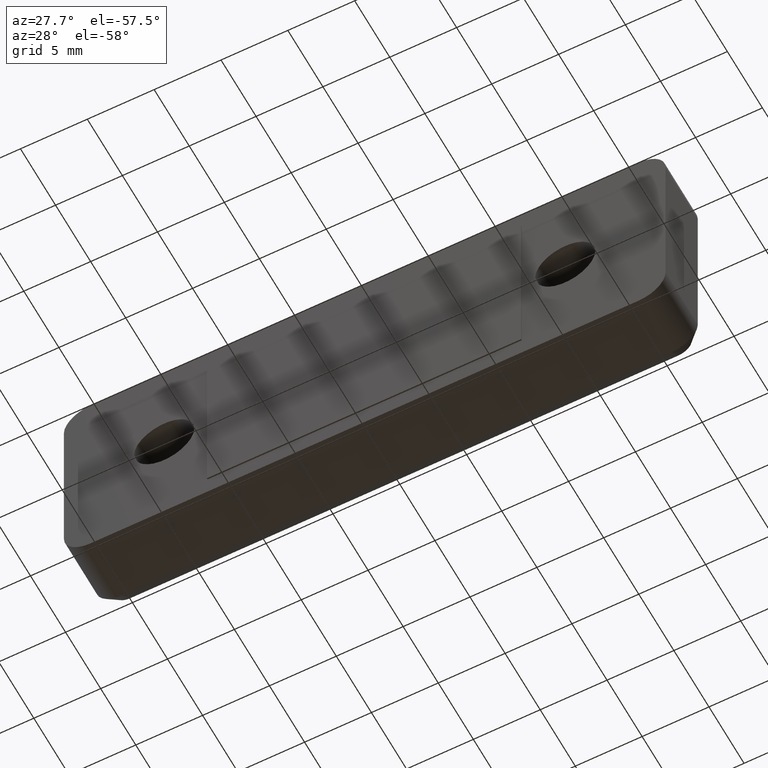
[diagram: clean part render]
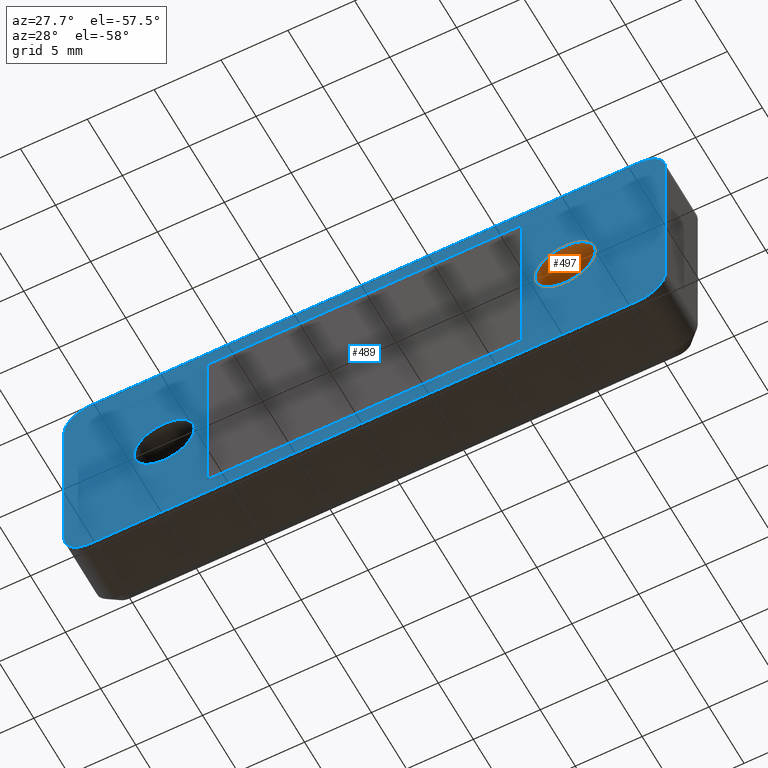
[diagram: same view with the hole feature highlighted: cylindrical wall and planar end face, labeled with their STEP entity ids]
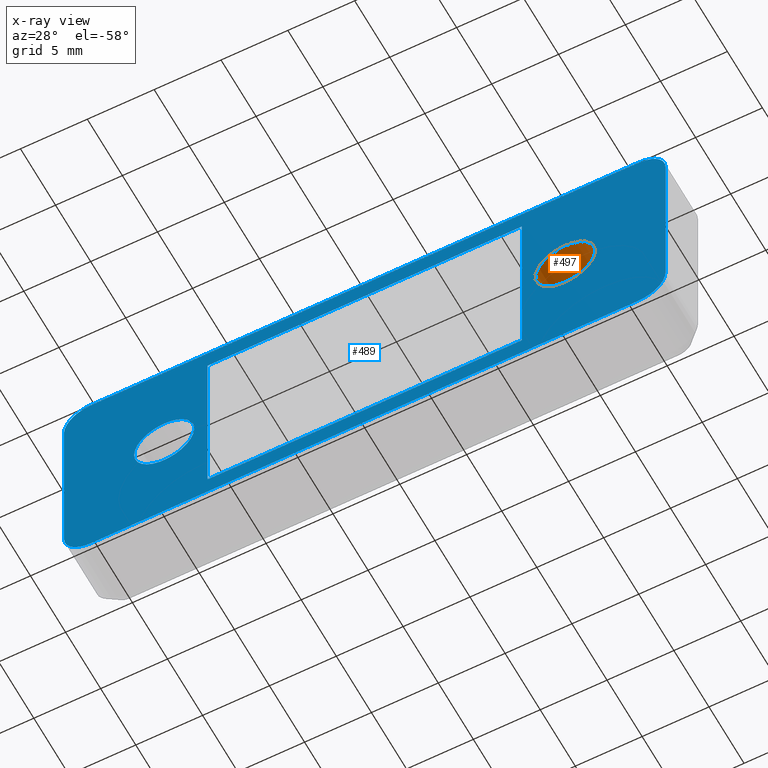
[diagram: x-ray of the same camera — body ghosted, the hole faces saturated]
A machine part, auxiliary view. The highlighted faces form one hole feature of diameter 4.5 mm: the cylindrical wall (entity #497, orange) and its adjacent planar end face (entity #489, blue) — they share a circular edge in the B-rep.
The next image is the same camera in x-ray (body ghosted, the hole faces saturated) — the bore reads through the body.
Wall:
#25=CYLINDRICAL_SURFACE('',#552,2.25);
#44=FACE_BOUND('',#141,.T.);
#60=CIRCLE('',#538,2.25);
#64=CIRCLE('',#545,2.25);
#97=FACE_OUTER_BOUND('',#140,.T.);
#140=EDGE_LOOP('',(#448));
#141=EDGE_LOOP('',(#449));
#257=VERTEX_POINT('',#815);
#261=VERTEX_POINT('',#826);
#319=EDGE_CURVE('',#257,#257,#60,.T.);
#323=EDGE_CURVE('',#261,#261,#64,.T.);
#448=ORIENTED_EDGE('',*,*,#323,.T.);
#449=ORIENTED_EDGE('',*,*,#319,.F.);
#497=ADVANCED_FACE('',(#97,#44),#25,.F.);
#538=AXIS2_PLACEMENT_3D('',#816,#671,#672);
#545=AXIS2_PLACEMENT_3D('',#827,#685,#686);
#552=AXIS2_PLACEMENT_3D('',#836,#699,#700);
#671=DIRECTION('center_axis',(0.,1.,1.22464679914735E-16));
#672=DIRECTION('ref_axis',(1.,0.,0.));
#685=DIRECTION('center_axis',(0.,1.,1.22464679914735E-16));
#686=DIRECTION('ref_axis',(1.,0.,0.));
#699=DIRECTION('center_axis',(0.,1.,1.22464679914735E-16));
#700=DIRECTION('ref_axis',(1.,0.,0.));
#815=CARTESIAN_POINT('',(12.75,0.,2.22044604925031E-15));
#816=CARTESIAN_POINT('Origin',(15.,0.,2.22044604925031E-15));
#826=CARTESIAN_POINT('',(12.75,2.6,2.22044604925031E-15));
#827=CARTESIAN_POINT('Origin',(15.,2.6,2.22044604925031E-15));
#836=CARTESIAN_POINT('Origin',(15.,2.6,2.22044604925031E-15));
End face:
#34=FACE_BOUND('',#123,.T.);
#35=FACE_BOUND('',#124,.T.);
#36=FACE_BOUND('',#125,.T.);
#55=CIRCLE('',#526,2.);
#56=CIRCLE('',#529,2.);
#57=CIRCLE('',#532,2.);
#58=CIRCLE('',#535,2.);
#59=CIRCLE('',#537,2.25);
#60=CIRCLE('',#538,2.25);
#89=FACE_OUTER_BOUND('',#122,.T.);
#122=EDGE_LOOP('',(#420,#421,#422,#423,#424,#425,#426,#427));
#123=EDGE_LOOP('',(#428,#429,#430,#431));
#124=EDGE_LOOP('',(#432));
#125=EDGE_LOOP('',(#433));
#142=LINE('',#705,#182);
#146=LINE('',#713,#186);
#149=LINE('',#719,#189);
#152=LINE('',#724,#192);
#171=LINE('',#784,#211);
#174=LINE('',#792,#214);
#177=LINE('',#800,#217);
#180=LINE('',#808,#220);
#182=VECTOR('',#557,14.);
#186=VECTOR('',#563,23.5);
#189=VECTOR('',#568,14.);
#192=VECTOR('',#573,23.5);
#211=VECTOR('',#634,41.);
#214=VECTOR('',#643,13.);
#217=VECTOR('',#652,41.);
#220=VECTOR('',#661,13.);
#222=VERTEX_POINT('',#703);
#223=VERTEX_POINT('',#704);
#226=VERTEX_POINT('',#712);
#228=VERTEX_POINT('',#718);
#248=VERTEX_POINT('',#781);
#249=VERTEX_POINT('',#783);
#250=VERTEX_POINT('',#787);
#251=VERTEX_POINT('',#791);
#252=VERTEX_POINT('',#795);
#253=VERTEX_POINT('',#799);
#254=VERTEX_POINT('',#803);
#255=VERTEX_POINT('',#807);
#256=VERTEX_POINT('',#813);
#257=VERTEX_POINT('',#815);
#264=EDGE_CURVE('',#222,#223,#142,.T.);
#268=EDGE_CURVE('',#223,#226,#146,.T.);
#271=EDGE_CURVE('',#226,#228,#149,.T.);
#274=EDGE_CURVE('',#228,#222,#152,.T.);
#303=EDGE_CURVE('',#249,#248,#171,.T.);
#305=EDGE_CURVE('',#250,#249,#55,.T.);
#307=EDGE_CURVE('',#251,#250,#174,.T.);
#309=EDGE_CURVE('',#252,#251,#56,.T.);
#311=EDGE_CURVE('',#253,#252,#177,.T.);
#313=EDGE_CURVE('',#254,#253,#57,.T.);
#315=EDGE_CURVE('',#255,#254,#180,.T.);
#317=EDGE_CURVE('',#248,#255,#58,.T.);
#318=EDGE_CURVE('',#256,#256,#59,.T.);
#319=EDGE_CURVE('',#257,#257,#60,.T.);
#420=ORIENTED_EDGE('',*,*,#317,.T.);
#421=ORIENTED_EDGE('',*,*,#315,.T.);
#422=ORIENTED_EDGE('',*,*,#313,.T.);
#423=ORIENTED_EDGE('',*,*,#311,.T.);
#424=ORIENTED_EDGE('',*,*,#309,.T.);
#425=ORIENTED_EDGE('',*,*,#307,.T.);
#426=ORIENTED_EDGE('',*,*,#305,.T.);
#427=ORIENTED_EDGE('',*,*,#303,.T.);
#428=ORIENTED_EDGE('',*,*,#264,.T.);
#429=ORIENTED_EDGE('',*,*,#268,.T.);
#430=ORIENTED_EDGE('',*,*,#271,.T.);
#431=ORIENTED_EDGE('',*,*,#274,.T.);
#432=ORIENTED_EDGE('',*,*,#318,.T.);
#433=ORIENTED_EDGE('',*,*,#319,.T.);
#464=PLANE('',#536);
#489=ADVANCED_FACE('',(#89,#34,#35,#36),#464,.T.);
#526=AXIS2_PLACEMENT_3D('',#788,#638,#639);
#529=AXIS2_PLACEMENT_3D('',#796,#647,#648);
#532=AXIS2_PLACEMENT_3D('',#804,#656,#657);
#535=AXIS2_PLACEMENT_3D('',#811,#665,#666);
#536=AXIS2_PLACEMENT_3D('',#812,#667,#668);
#537=AXIS2_PLACEMENT_3D('',#814,#669,#670);
#538=AXIS2_PLACEMENT_3D('',#816,#671,#672);
#557=DIRECTION('',(0.,1.22464679914735E-16,-1.));
#563=DIRECTION('',(-1.,0.,0.));
#568=DIRECTION('',(0.,-1.22464679914735E-16,1.));
#573=DIRECTION('',(1.,0.,0.));
#634=DIRECTION('',(-1.,0.,0.));
#638=DIRECTION('center_axis',(0.,-1.,-1.22464679914735E-16));
#639=DIRECTION('ref_axis',(1.,0.,0.));
#643=DIRECTION('',(0.,-1.22464679914735E-16,1.));
#647=DIRECTION('center_axis',(0.,-1.,-1.22464679914735E-16));
#648=DIRECTION('ref_axis',(0.,1.22464679914735E-16,-1.));
#652=DIRECTION('',(1.,0.,0.));
#656=DIRECTION('center_axis',(0.,-1.,-1.22464679914735E-16));
#657=DIRECTION('ref_axis',(-1.,0.,0.));
#661=DIRECTION('',(0.,1.22464679914735E-16,-1.));
#665=DIRECTION('center_axis',(0.,-1.,-1.22464679914735E-16));
#666=DIRECTION('ref_axis',(0.,-1.22464679914735E-16,1.));
#667=DIRECTION('center_axis',(0.,-1.,-1.22464679914735E-16));
#668=DIRECTION('ref_axis',(1.,0.,0.));
#669=DIRECTION('center_axis',(0.,1.,1.22464679914735E-16));
#670=DIRECTION('ref_axis',(1.,0.,0.));
#671=DIRECTION('center_axis',(0.,1.,1.22464679914735E-16));
#672=DIRECTION('ref_axis',(1.,0.,0.));
#703=CARTESIAN_POINT('',(11.75,-8.57252759403145E-16,7.));
#704=CARTESIAN_POINT('',(11.75,8.57252759403145E-16,-7.));
#705=CARTESIAN_POINT('',(11.75,4.28626379701573E-16,-3.5));
#712=CARTESIAN_POINT('',(-11.75,8.57252759403145E-16,-7.));
#713=CARTESIAN_POINT('',(-5.875,8.57252759403145E-16,-7.));
#718=CARTESIAN_POINT('',(-11.75,-8.57252759403145E-16,7.));
#719=CARTESIAN_POINT('',(-11.75,-4.28626379701572E-16,3.5));
#724=CARTESIAN_POINT('',(5.875,-8.57252759403145E-16,7.));
#781=CARTESIAN_POINT('',(-20.5,-2.22044604925031E-15,8.5));
#783=CARTESIAN_POINT('',(20.5,-2.22044604925031E-15,8.5));
#784=CARTESIAN_POINT('',(20.5,-2.22044604925031E-15,8.5));
#787=CARTESIAN_POINT('',(22.5,-1.11022302462516E-15,6.5));
#788=CARTESIAN_POINT('Origin',(20.5,-1.11022302462516E-15,6.5));
#791=CARTESIAN_POINT('',(22.5,0.,-6.5));
#792=CARTESIAN_POINT('',(22.5,0.,-6.5));
#795=CARTESIAN_POINT('',(20.5,0.,-8.5));
#796=CARTESIAN_POINT('Origin',(20.5,0.,-6.5));
#799=CARTESIAN_POINT('',(-20.5,0.,-8.5));
#800=CARTESIAN_POINT('',(-20.5,0.,-8.5));
#803=CARTESIAN_POINT('',(-22.5,0.,-6.5));
#804=CARTESIAN_POINT('Origin',(-20.5,0.,-6.5));
#807=CARTESIAN_POINT('',(-22.5,-1.11022302462516E-15,6.5));
#808=CARTESIAN_POINT('',(-22.5,-1.11022302462516E-15,6.5));
#811=CARTESIAN_POINT('Origin',(-20.5,-1.11022302462516E-15,6.5));
#812=CARTESIAN_POINT('Origin',(0.,0.,2.22044604925031E-15));
#813=CARTESIAN_POINT('',(-17.25,0.,2.22044604925031E-15));
#814=CARTESIAN_POINT('Origin',(-15.,0.,2.22044604925031E-15));
#815=CARTESIAN_POINT('',(12.75,0.,2.22044604925031E-15));
#816=CARTESIAN_POINT('Origin',(15.,0.,2.22044604925031E-15));